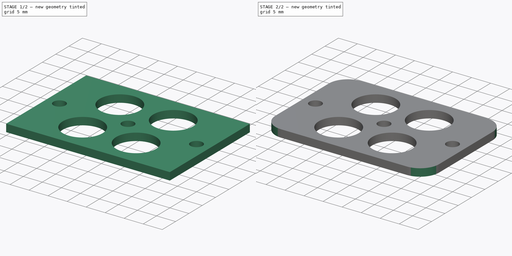
[diagram: build sequence overview — one tinted view per stage of 2, left to right]
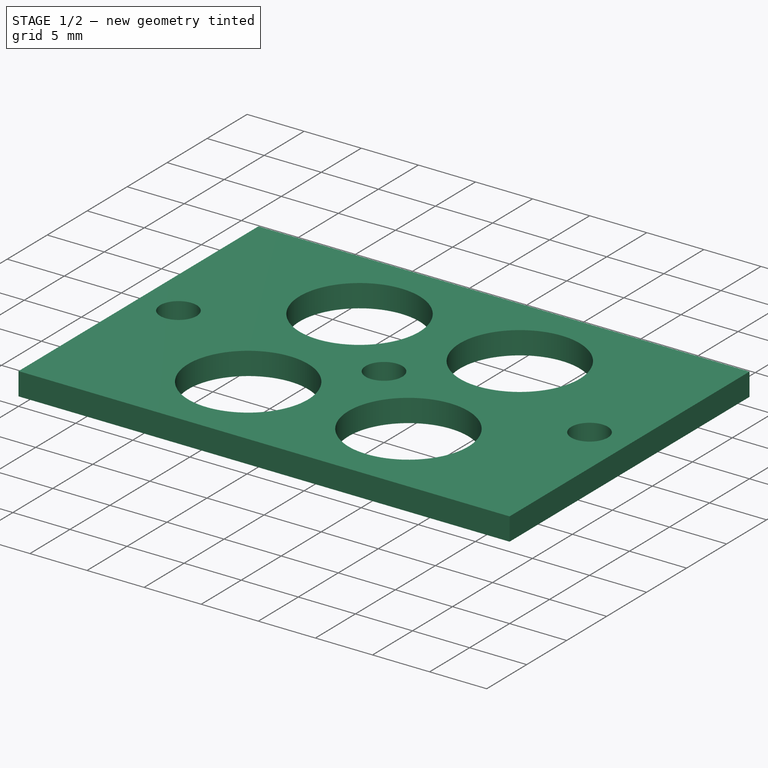
[diagram: stage 1 of 2 — iso view after this stage's code; geometry added in this stage tinted green]
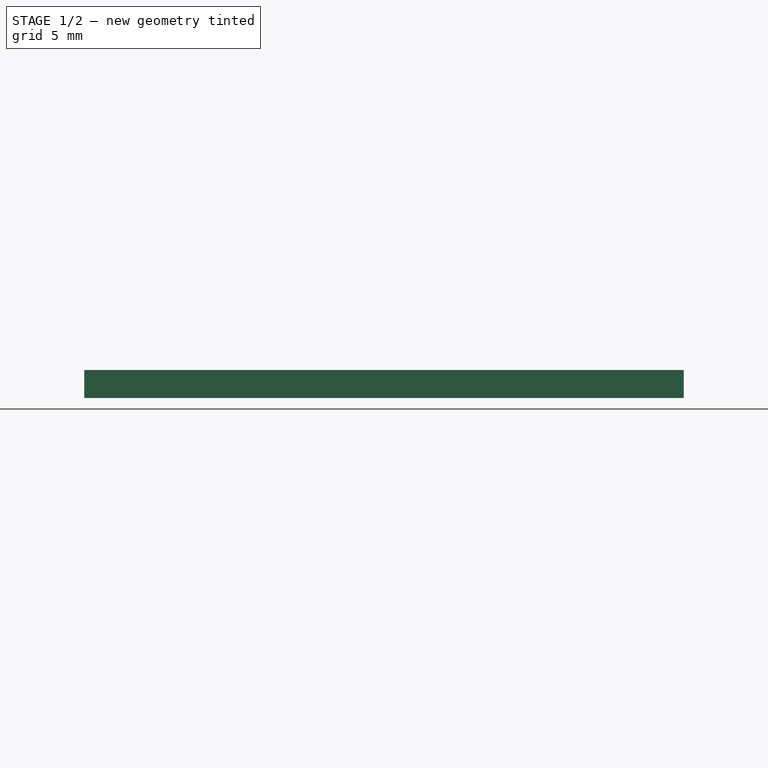
[diagram: stage 1 of 2 — front view after this stage's code; geometry added in this stage tinted green]
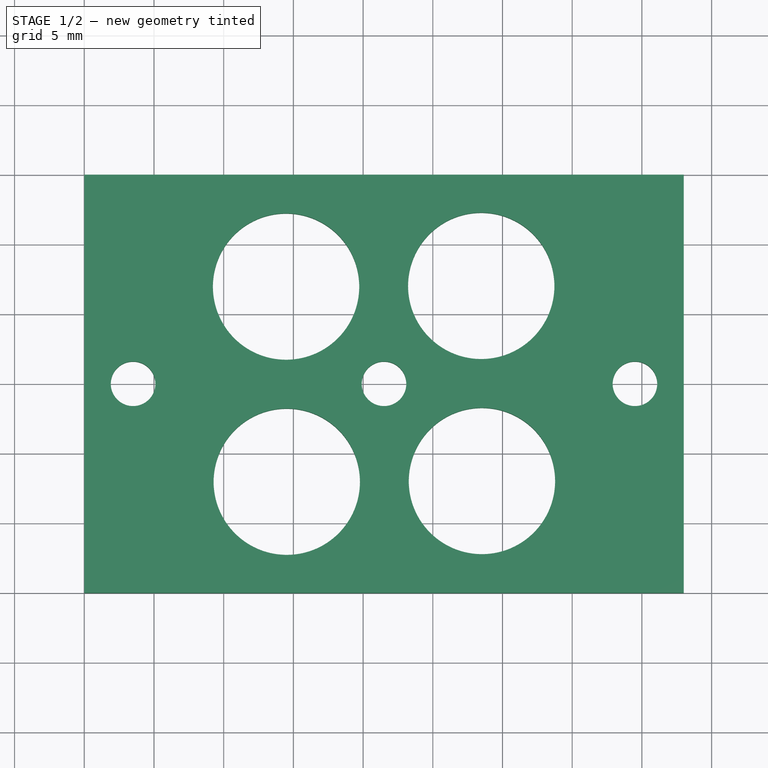
[diagram: stage 1 of 2 — top view after this stage's code; geometry added in this stage tinted green]
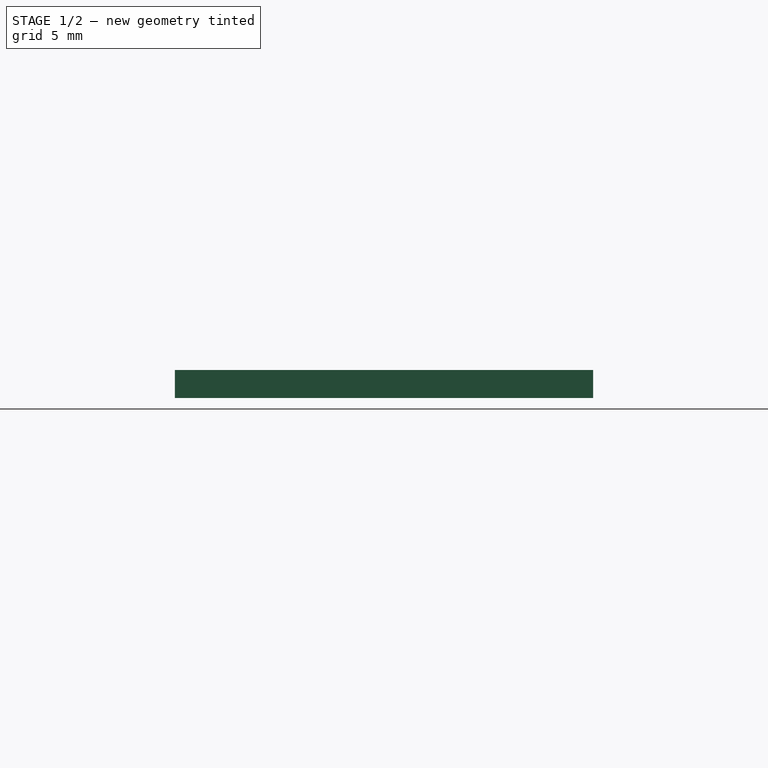
[diagram: stage 1 of 2 — right view after this stage's code; geometry added in this stage tinted green]
FCSTD DOCUMENT  (FreeCAD 0.19.2R1_voidlinux)
Label: RcaAdapter2
License: All rights reserved
LicenseURL: http://en.wikipedia.org/wiki/All_rights_reserved
objects: Sketcher::SketchObject×1, PartDesign::Pad×1, PartDesign::Fillet×1, PartDesign::Body×1
note: 6 computed .brp shape members not serialized (recipe doc carries the construction recipe); baked Part::Feature solids carry a one-line shape summary decoded from their .brp

FEATURE [Sketcher::SketchObject] Sketch
  FullyConstrained = true
  MapMode = 5
  Support = -> [XY_Plane]
  sketch-geometry (16):
    g0: LineSegment StartX=0 StartY=0 StartZ=0 EndX=43 EndY=0 EndZ=0
    g1: LineSegment StartX=43 StartY=0 StartZ=0 EndX=43 EndY=30 EndZ=0
    g2: LineSegment StartX=43 StartY=30 StartZ=0 EndX=0 EndY=30 EndZ=0
    g3: LineSegment StartX=0 StartY=30 StartZ=0 EndX=0 EndY=0 EndZ=0
    g4: Circle CenterX=14.4748 CenterY=21.9747 CenterZ=0 NormalX=0 NormalY=0 NormalZ=1 AngleXU=0 Radius=5.25
    g5: Circle CenterX=28.4747 CenterY=22.0252 CenterZ=0 NormalX=0 NormalY=0 NormalZ=1 AngleXU=0 Radius=5.25
    g6: LineSegment StartX=14.4748 StartY=21.9747 StartZ=0 EndX=28.4747 EndY=22.0252 EndZ=0
    g7: Circle CenterX=14.5253 CenterY=7.97477 CenterZ=0 NormalX=0 NormalY=0 NormalZ=1 AngleXU=0 Radius=5.25
    g8: LineSegment StartX=14.4748 StartY=21.9747 StartZ=0 EndX=14.5253 EndY=7.97477 EndZ=0
    g9: Circle CenterX=28.5252 CenterY=8.02532 CenterZ=0 NormalX=0 NormalY=0 NormalZ=1 AngleXU=0 Radius=5.25
    g10: LineSegment StartX=14.5253 StartY=7.97477 StartZ=0 EndX=28.5252 EndY=8.02532 EndZ=0
    g11: GeomPoint X=21.5 Y=15 Z=0
    g12: Circle CenterX=21.5 CenterY=15 CenterZ=0 NormalX=0 NormalY=0 NormalZ=1 AngleXU=0 Radius=1.6
    g13: LineSegment StartX=0 StartY=15 StartZ=0 EndX=43 EndY=15 EndZ=0
    g14: Circle CenterX=3.5 CenterY=15 CenterZ=0 NormalX=0 NormalY=0 NormalZ=1 AngleXU=0 Radius=1.6
    g15: Circle CenterX=39.5 CenterY=15 CenterZ=0 NormalX=0 NormalY=0 NormalZ=1 AngleXU=0 Radius=1.6
  constraints (39):
    c: Coincident(g0,g1)
    c: Coincident(g1,g2)
    c: Coincident(g2,g3)
    c: Coincident(g3,g0)
    c: Horizontal(g0)
    c: Horizontal(g2)
    c: Vertical(g1)
    c: Vertical(g3)
    c: Coincident(g0,g-1)
    c: Diameter(g4) = 10.5
    c: Diameter(g5) = 10.5
    c: Coincident(g4,g6)
    c: Coincident(g5,g6)
    c: Distance(g6) = 14
    c: Angle(g6) = 0.0036101
    c: Diameter(g7) = 10.5
    c: Coincident(g4,g8)
    c: Coincident(g7,g8)
    c: Equal(g8,g6)
    c: Perpendicular(g8,g6)
    c: Diameter(g9) = 10.5
    c: Coincident(g7,g10)
    c: Coincident(g9,g10)
    c: Equal(g6,g10)
    c: Parallel(g10,g6)
    c: Symmetric(g7,g5,g11)
    c: DistanceX(g2,g2) = 43
    c: Symmetric(g2,g0,g11)
    c: DistanceY(g1,g1) = 30
    c: Coincident(g12,g11)
    c: Diameter(g12) = 3.2
    c: PointOnObject(g13,g1)
    c: Horizontal(g13)
    c: Symmetric(g2,g0,g13)
    c: PointOnObject(g14,g13)
    c: Equal(g12,g15)
    c: Equal(g12,g14)
    c: Symmetric(g14,g15,g12)
    c: DistanceX(g14,g15) = 36
FEATURE [PartDesign::Pad] Pad
  Direction = (1,1,1)
  Length = 2
  Length2 = 100
  Profile = -> Sketch
  Type = 0
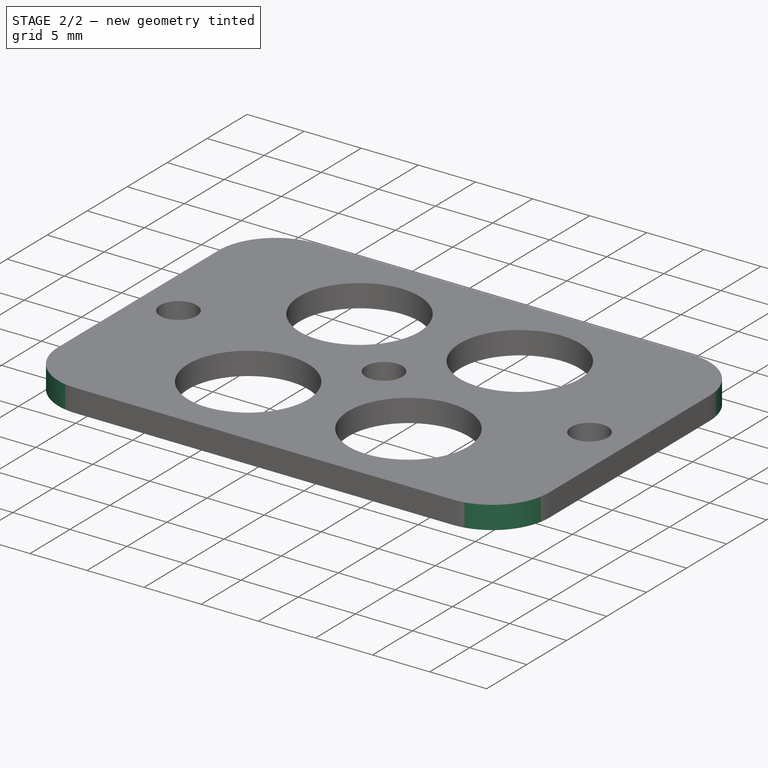
[diagram: stage 2 of 2 — iso view after this stage's code; geometry added in this stage tinted green]
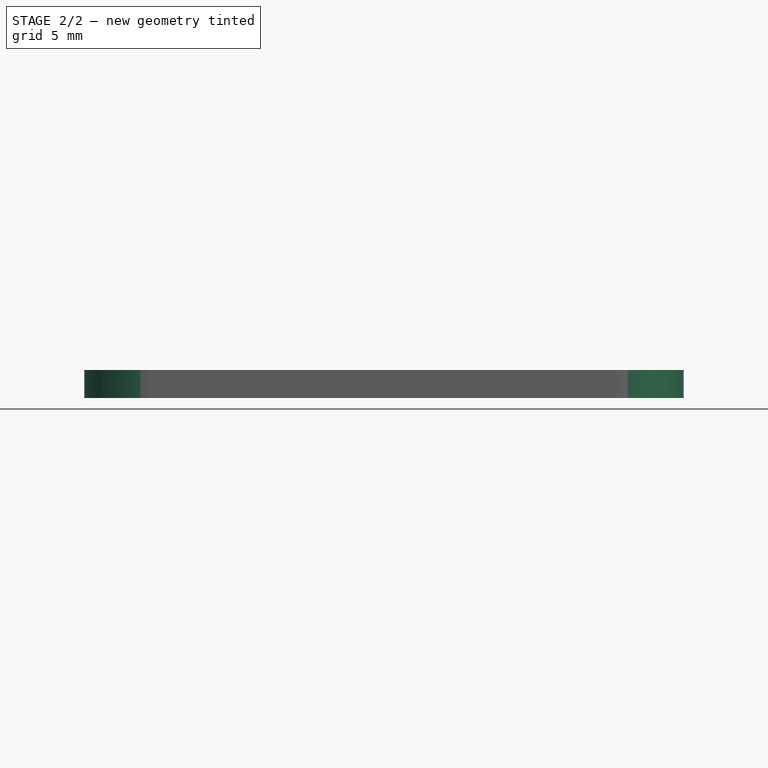
[diagram: stage 2 of 2 — front view after this stage's code; geometry added in this stage tinted green]
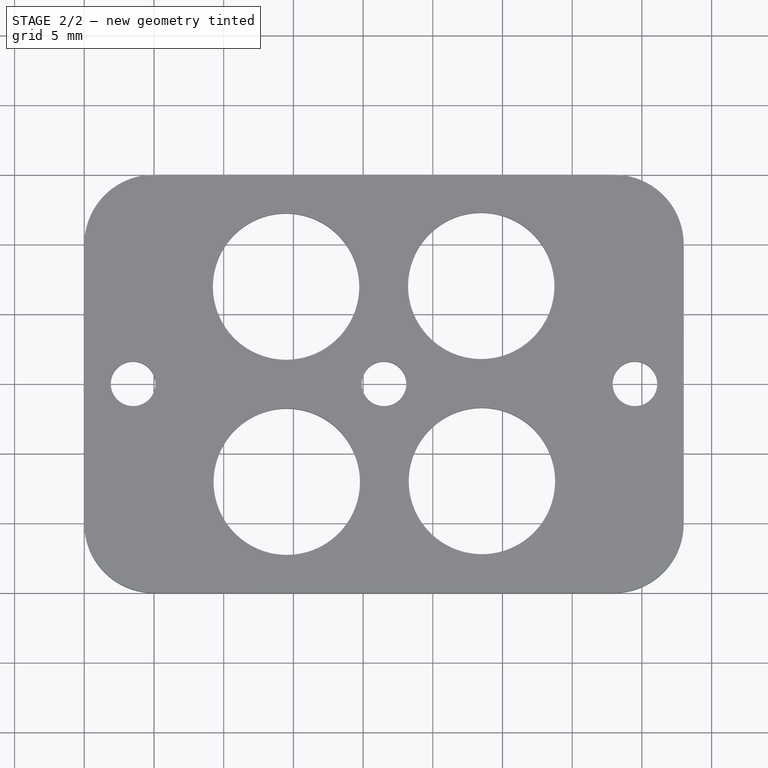
[diagram: stage 2 of 2 — top view after this stage's code; geometry added in this stage tinted green]
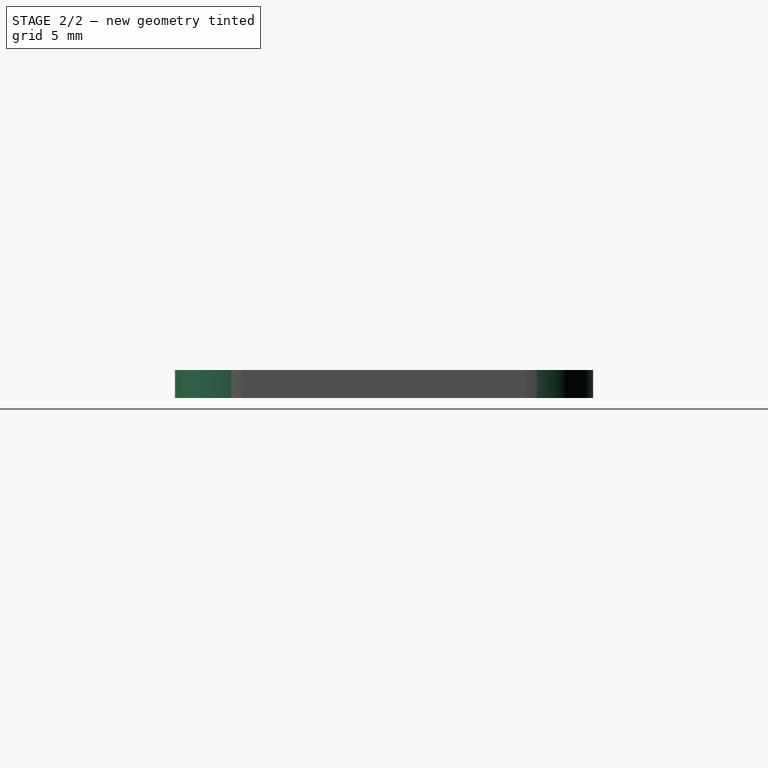
[diagram: stage 2 of 2 — right view after this stage's code; geometry added in this stage tinted green]
FEATURE [PartDesign::Fillet] Fillet
  Base = -> Pad [Edge2,Edge5,Edge1,Edge8]
  BaseFeature = -> Pad
  Radius = 5
  SupportTransform = false
FEATURE [PartDesign::Body] Body
  Group = -> [Sketch,Pad,Fillet]
  Origin = -> Origin
  Tip = -> Fillet
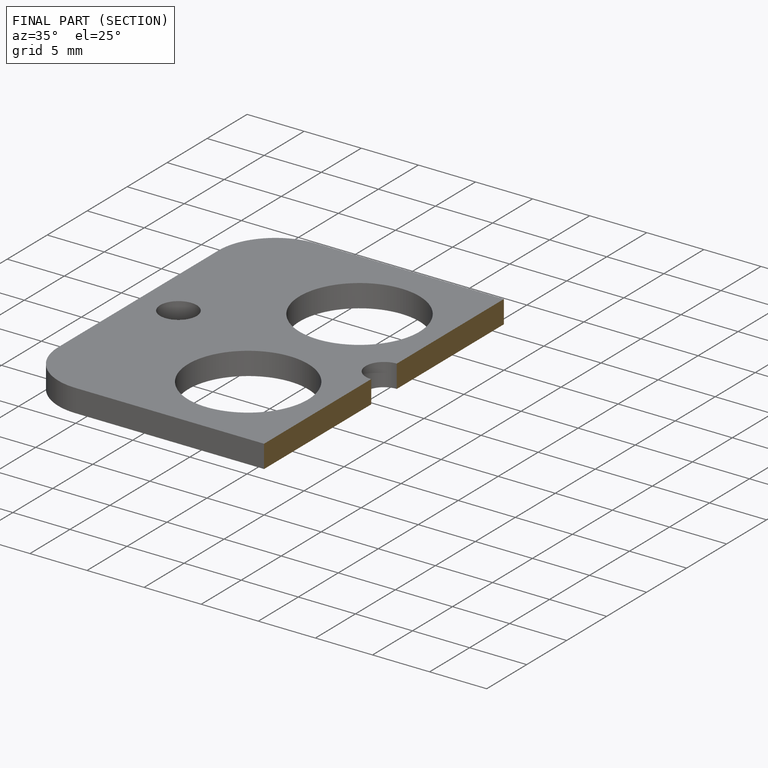
[diagram: finished part — half-section view (interior)]
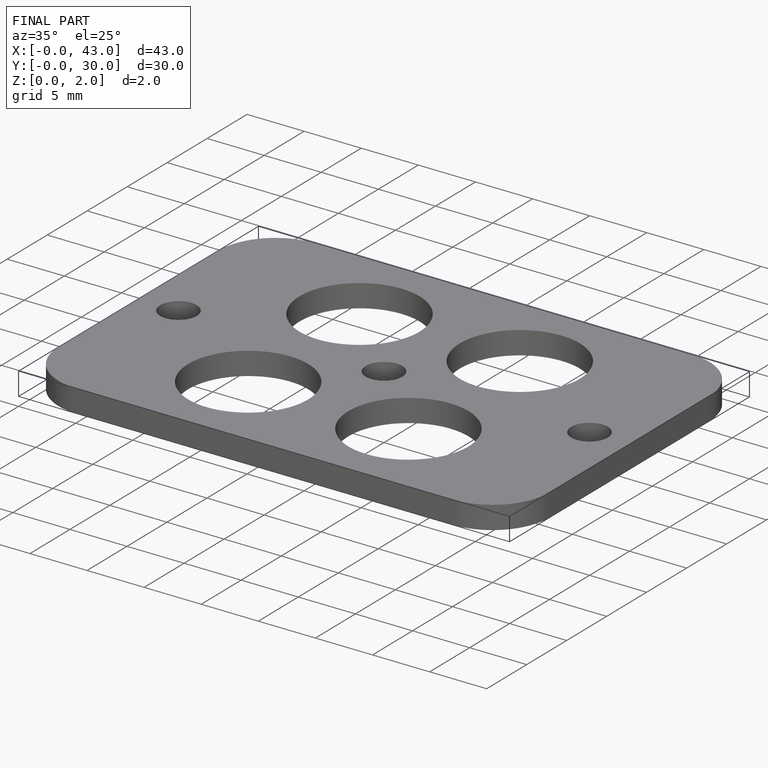
[diagram: finished part — iso view with bounding-box wireframe]
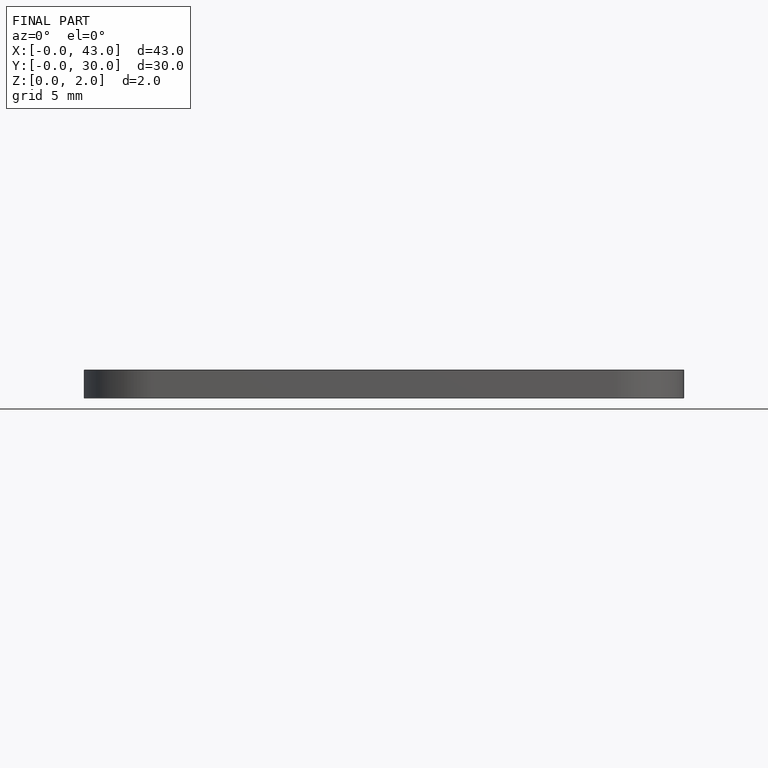
[diagram: finished part — front view with bounding-box wireframe]
